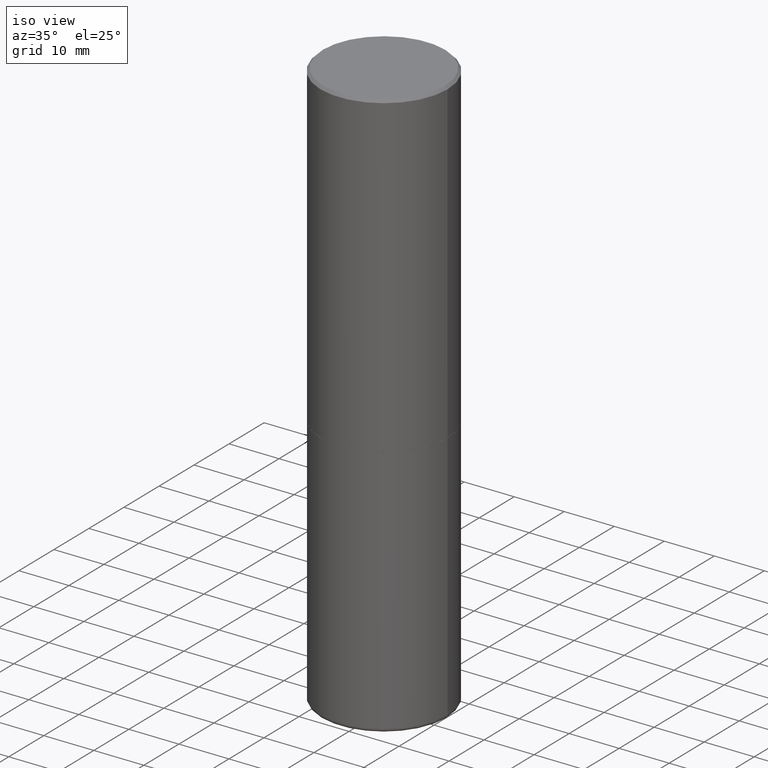
[diagram: clean part render]
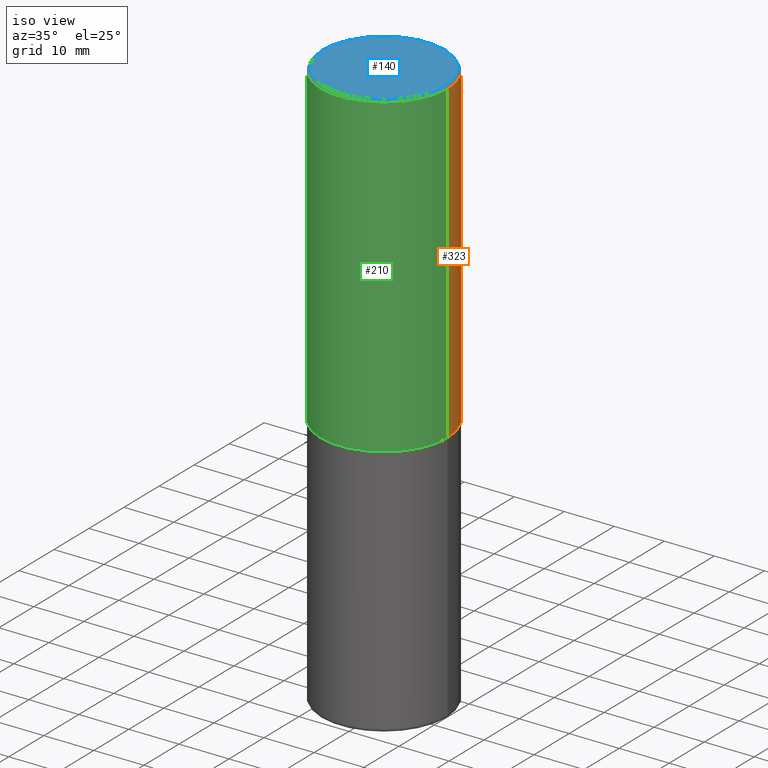
[diagram: same view with three faces highlighted in distinct colors, each labeled with its STEP entity id]
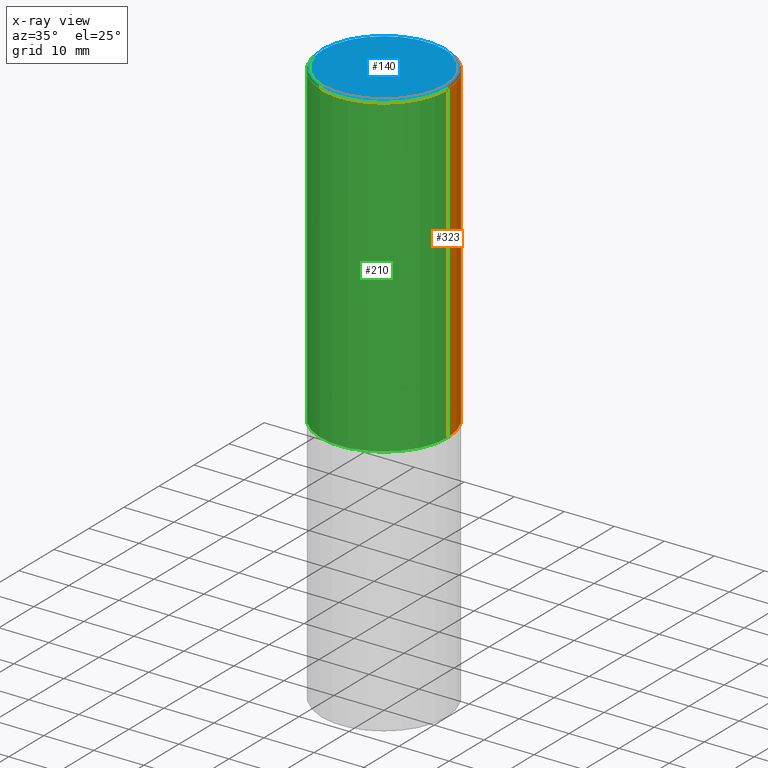
[diagram: x-ray of the same camera — body ghosted, the three highlighted faces saturated]
A machine part, iso view with three faces highlighted in distinct colors.
The next image is the same camera in x-ray (body ghosted, the three faces saturated) — at least one of them is partly hidden behind the body in this view.
Their STEP definitions:

[orange] entity #323 — the highlighted cylindrical surface (partial cylindrical patch) has radius 12.7 mm, axis along (-0, 0, 1).
#12 = DIRECTION ( 'NONE',  ( -2.445468806185136597E-29, 3.491481338843145583E-15, 1.000000000000000000 ) ) ;
#16 = CARTESIAN_POINT ( 'NONE',  ( -0.5000000000000001110, 3.552713678800501718E-15, -2.459467545127453732E-29 ) ) ;
#44 = CARTESIAN_POINT ( 'NONE',  ( 0.000000000000000000, 0.000000000000000000, 0.000000000000000000 ) ) ;
#54 = DIRECTION ( 'NONE',  ( 1.000000000000000000, -6.982962677686269866E-15, 0.000000000000000000 ) ) ;
#55 = CARTESIAN_POINT ( 'NONE',  ( 0.5000000000000002220, -1.221669320461215845E-14, -2.499000000000000110 ) ) ;
#68 = FACE_OUTER_BOUND ( 'NONE', #368, .T. ) ;
#78 = CARTESIAN_POINT ( 'NONE',  ( 0.5000000000000001110, -3.491481338843134539E-15, 2.438088387897968457E-29 ) ) ;
#79 = DIRECTION ( 'NONE',  ( -2.445468806185136597E-29, 3.491481338843145583E-15, 1.000000000000000000 ) ) ;
#82 = CIRCLE ( 'NONE', #145, 0.5000000000000002220 ) ;
#83 = CIRCLE ( 'NONE', #118, 0.5000000000000001110 ) ;
#84 = CARTESIAN_POINT ( 'NONE',  ( 6.111226546656657010E-29, -8.725211865769021935E-15, -2.499000000000000110 ) ) ;
#99 = CARTESIAN_POINT ( 'NONE',  ( -0.5000000000000002220, -8.448070674724393209E-16, -2.499000000000000110 ) ) ;
#100 = VERTEX_POINT ( 'NONE', #260 ) ;
#109 = VECTOR ( 'NONE', #300, 39.37007874015748143 ) ;
#118 = AXIS2_PLACEMENT_3D ( 'NONE', #397, #394, #257 ) ;
#145 = AXIS2_PLACEMENT_3D ( 'NONE', #84, #79, #54 ) ;
#167 = EDGE_CURVE ( 'NONE', #198, #280, #410, .T. ) ;
#172 = ORIENTED_EDGE ( 'NONE', *, *, #167, .F. ) ;
#173 = EDGE_CURVE ( 'NONE', #198, #336, #82, .T. ) ;
#189 = DIRECTION ( 'NONE',  ( 1.000000000000000000, -6.982962677686267499E-15, 4.876176775795935793E-29 ) ) ;
#196 = CYLINDRICAL_SURFACE ( 'NONE', #390, 0.5000000000000001110 ) ;
#198 = VERTEX_POINT ( 'NONE', #55 ) ;
#220 = CARTESIAN_POINT ( 'NONE',  ( 0.5000000000000001110, -3.500078625662629868E-15, -0.02000000000000010797 ) ) ;
#230 = VECTOR ( 'NONE', #408, 39.37007874015748143 ) ;
#257 = DIRECTION ( 'NONE',  ( 1.000000000000000000, -6.982962677686265922E-15, 0.000000000000000000 ) ) ;
#260 = CARTESIAN_POINT ( 'NONE',  ( -0.5000000000000001110, 3.421651712066270452E-15, -0.02000000000000010797 ) ) ;
#266 = ORIENTED_EDGE ( 'NONE', *, *, #415, .F. ) ;
#280 = VERTEX_POINT ( 'NONE', #220 ) ;
#296 = ORIENTED_EDGE ( 'NONE', *, *, #173, .T. ) ;
#300 = DIRECTION ( 'NONE',  ( -2.445468806185136877E-29, 3.491481338843145188E-15, 1.000000000000000000 ) ) ;
#323 = ADVANCED_FACE ( 'NONE', ( #68 ), #196, .T. ) ;
#333 = LINE ( 'NONE', #16, #109 ) ;
#334 = EDGE_CURVE ( 'NONE', #336, #100, #333, .T. ) ;
#336 = VERTEX_POINT ( 'NONE', #99 ) ;
#367 = ORIENTED_EDGE ( 'NONE', *, *, #334, .T. ) ;
#368 = EDGE_LOOP ( 'NONE', ( #296, #367, #266, #172 ) ) ;
#390 = AXIS2_PLACEMENT_3D ( 'NONE', #44, #12, #189 ) ;
#394 = DIRECTION ( 'NONE',  ( -2.445468806185136597E-29, 3.491481338843145583E-15, 1.000000000000000000 ) ) ;
#397 = CARTESIAN_POINT ( 'NONE',  ( 4.890937612370299433E-31, -6.982962677686328587E-17, -0.02000000000000010797 ) ) ;
#408 = DIRECTION ( 'NONE',  ( -2.445468806185136877E-29, 3.491481338843145188E-15, 1.000000000000000000 ) ) ;
#410 = LINE ( 'NONE', #78, #230 ) ;
#415 = EDGE_CURVE ( 'NONE', #280, #100, #83, .T. ) ;

[blue] entity #140 — the highlighted planar face has unit normal (0, -0, -1).
#3 = AXIS2_PLACEMENT_3D ( 'NONE', #391, #166, #298 ) ;
#13 = EDGE_CURVE ( 'NONE', #265, #364, #330, .T. ) ;
#14 = EDGE_CURVE ( 'NONE', #364, #265, #206, .T. ) ;
#34 = AXIS2_PLACEMENT_3D ( 'NONE', #247, #178, #345 ) ;
#63 = AXIS2_PLACEMENT_3D ( 'NONE', #104, #128, #233 ) ;
#98 = ORIENTED_EDGE ( 'NONE', *, *, #13, .T. ) ;
#104 = CARTESIAN_POINT ( 'NONE',  ( -5.532412495976664402E-45, 7.898818803016371119E-31, 2.262311619753217762E-16 ) ) ;
#125 = CARTESIAN_POINT ( 'NONE',  ( -0.4799999999999998157, 3.386736898677839197E-15, 2.262311619752982090E-16 ) ) ;
#128 = DIRECTION ( 'NONE',  ( -2.445468806185136597E-29, 3.491481338843145583E-15, 1.000000000000000000 ) ) ;
#140 = ADVANCED_FACE ( 'NONE', ( #275 ), #243, .F. ) ;
#166 = DIRECTION ( 'NONE',  ( -2.445468806185136597E-29, 3.491481338843145583E-15, 1.000000000000000000 ) ) ;
#178 = DIRECTION ( 'NONE',  ( 2.438088387897960049E-29, -3.491481338843145188E-15, -1.000000000000000000 ) ) ;
#206 = CIRCLE ( 'NONE', #63, 0.4799999999999998157 ) ;
#233 = DIRECTION ( 'NONE',  ( 1.000000000000000000, -6.982962677686266711E-15, 4.878011538933552085E-29 ) ) ;
#243 = PLANE ( 'NONE',  #34 ) ;
#247 = CARTESIAN_POINT ( 'NONE',  ( 3.351822085289406364E-15, 0.4799999999999998157, -1.562795461657048383E-15 ) ) ;
#265 = VERTEX_POINT ( 'NONE', #125 ) ;
#275 = FACE_OUTER_BOUND ( 'NONE', #365, .T. ) ;
#298 = DIRECTION ( 'NONE',  ( 1.000000000000000000, -6.982962677686266711E-15, 4.878011538933552085E-29 ) ) ;
#330 = CIRCLE ( 'NONE', #3, 0.4799999999999998157 ) ;
#345 = DIRECTION ( 'NONE',  ( -1.000000000000000000, 6.982962677686265922E-15, -4.876176775795935793E-29 ) ) ;
#353 = ORIENTED_EDGE ( 'NONE', *, *, #14, .T. ) ;
#364 = VERTEX_POINT ( 'NONE', #373 ) ;
#365 = EDGE_LOOP ( 'NONE', ( #98, #353 ) ) ;
#373 = CARTESIAN_POINT ( 'NONE',  ( 0.4799999999999998157, -3.396558832296481310E-15, 2.262311619753453927E-16 ) ) ;
#391 = CARTESIAN_POINT ( 'NONE',  ( -5.532412495976664402E-45, 7.898818803016371119E-31, 2.262311619753217762E-16 ) ) ;

[green] entity #210 — the highlighted cylindrical surface (partial cylindrical patch) has radius 12.7 mm, axis along (-0, 0, 1).
#6 = CARTESIAN_POINT ( 'NONE',  ( 0.000000000000000000, 0.000000000000000000, 0.000000000000000000 ) ) ;
#16 = CARTESIAN_POINT ( 'NONE',  ( -0.5000000000000001110, 3.552713678800501718E-15, -2.459467545127453732E-29 ) ) ;
#23 = CARTESIAN_POINT ( 'NONE',  ( 4.890937612370299433E-31, -6.982962677686328587E-17, -0.02000000000000010797 ) ) ;
#25 = EDGE_CURVE ( 'NONE', #336, #198, #214, .T. ) ;
#36 = CYLINDRICAL_SURFACE ( 'NONE', #380, 0.5000000000000001110 ) ;
#55 = CARTESIAN_POINT ( 'NONE',  ( 0.5000000000000002220, -1.221669320461215845E-14, -2.499000000000000110 ) ) ;
#71 = ORIENTED_EDGE ( 'NONE', *, *, #25, .T. ) ;
#78 = CARTESIAN_POINT ( 'NONE',  ( 0.5000000000000001110, -3.491481338843134539E-15, 2.438088387897968457E-29 ) ) ;
#89 = CIRCLE ( 'NONE', #406, 0.5000000000000001110 ) ;
#90 = DIRECTION ( 'NONE',  ( -2.445468806185136597E-29, 3.491481338843145583E-15, 1.000000000000000000 ) ) ;
#99 = CARTESIAN_POINT ( 'NONE',  ( -0.5000000000000002220, -8.448070674724393209E-16, -2.499000000000000110 ) ) ;
#100 = VERTEX_POINT ( 'NONE', #260 ) ;
#109 = VECTOR ( 'NONE', #300, 39.37007874015748143 ) ;
#129 = ORIENTED_EDGE ( 'NONE', *, *, #334, .F. ) ;
#162 = ORIENTED_EDGE ( 'NONE', *, *, #167, .T. ) ;
#167 = EDGE_CURVE ( 'NONE', #198, #280, #410, .T. ) ;
#197 = ORIENTED_EDGE ( 'NONE', *, *, #204, .F. ) ;
#198 = VERTEX_POINT ( 'NONE', #55 ) ;
#204 = EDGE_CURVE ( 'NONE', #100, #280, #89, .T. ) ;
#210 = ADVANCED_FACE ( 'NONE', ( #279 ), #36, .T. ) ;
#214 = CIRCLE ( 'NONE', #348, 0.5000000000000002220 ) ;
#220 = CARTESIAN_POINT ( 'NONE',  ( 0.5000000000000001110, -3.500078625662629868E-15, -0.02000000000000010797 ) ) ;
#222 = DIRECTION ( 'NONE',  ( 1.000000000000000000, -6.982962677686265922E-15, 0.000000000000000000 ) ) ;
#230 = VECTOR ( 'NONE', #408, 39.37007874015748143 ) ;
#232 = EDGE_LOOP ( 'NONE', ( #129, #71, #162, #197 ) ) ;
#249 = DIRECTION ( 'NONE',  ( 1.000000000000000000, -6.982962677686267499E-15, 4.876176775795935793E-29 ) ) ;
#260 = CARTESIAN_POINT ( 'NONE',  ( -0.5000000000000001110, 3.421651712066270452E-15, -0.02000000000000010797 ) ) ;
#279 = FACE_OUTER_BOUND ( 'NONE', #232, .T. ) ;
#280 = VERTEX_POINT ( 'NONE', #220 ) ;
#300 = DIRECTION ( 'NONE',  ( -2.445468806185136877E-29, 3.491481338843145188E-15, 1.000000000000000000 ) ) ;
#333 = LINE ( 'NONE', #16, #109 ) ;
#334 = EDGE_CURVE ( 'NONE', #336, #100, #333, .T. ) ;
#335 = DIRECTION ( 'NONE',  ( 1.000000000000000000, -6.982962677686269866E-15, 0.000000000000000000 ) ) ;
#336 = VERTEX_POINT ( 'NONE', #99 ) ;
#348 = AXIS2_PLACEMENT_3D ( 'NONE', #401, #371, #335 ) ;
#371 = DIRECTION ( 'NONE',  ( -2.445468806185136597E-29, 3.491481338843145583E-15, 1.000000000000000000 ) ) ;
#380 = AXIS2_PLACEMENT_3D ( 'NONE', #6, #90, #249 ) ;
#386 = DIRECTION ( 'NONE',  ( -2.445468806185136597E-29, 3.491481338843145583E-15, 1.000000000000000000 ) ) ;
#401 = CARTESIAN_POINT ( 'NONE',  ( 6.111226546656657010E-29, -8.725211865769021935E-15, -2.499000000000000110 ) ) ;
#406 = AXIS2_PLACEMENT_3D ( 'NONE', #23, #386, #222 ) ;
#408 = DIRECTION ( 'NONE',  ( -2.445468806185136877E-29, 3.491481338843145188E-15, 1.000000000000000000 ) ) ;
#410 = LINE ( 'NONE', #78, #230 ) ;